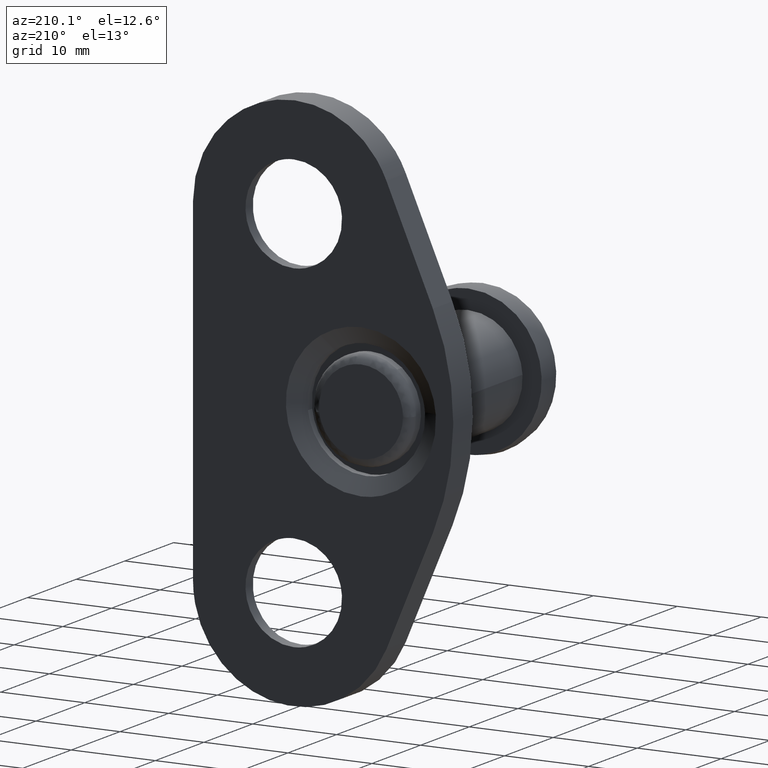
[diagram: clean part render]
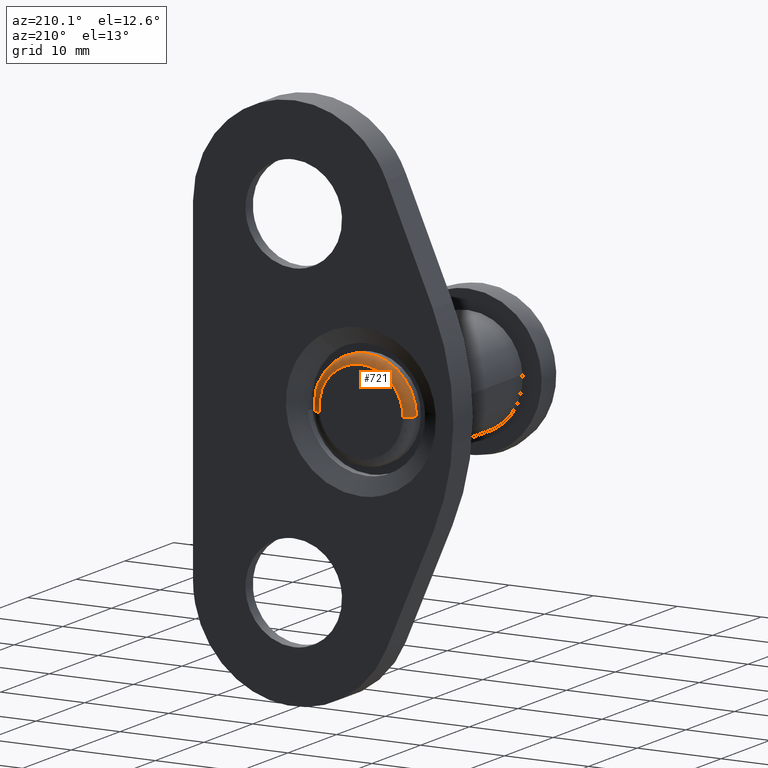
[diagram: same view with one face highlighted and labeled with its STEP entity id]
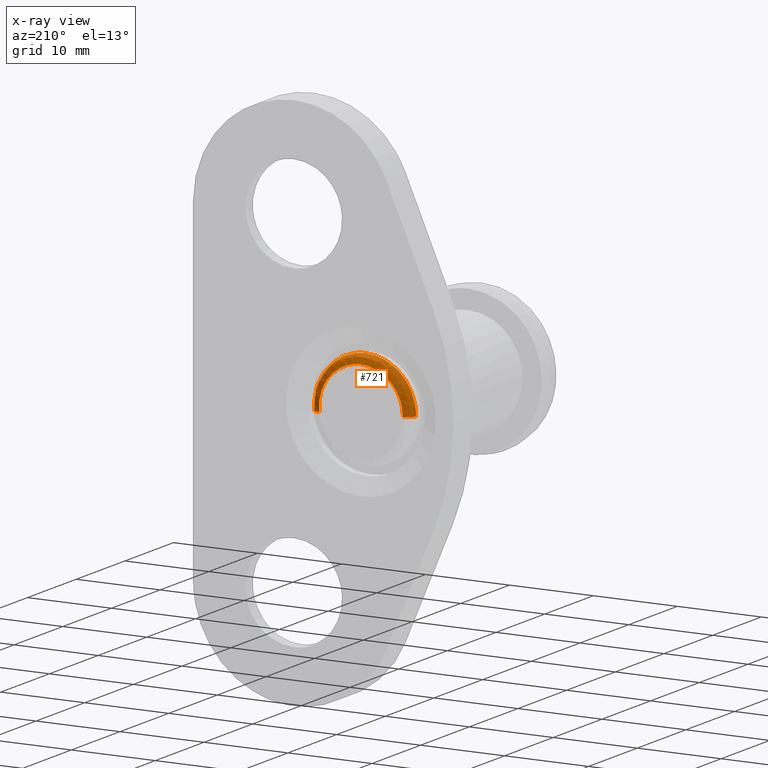
[diagram: x-ray of the same camera — body ghosted, the highlighted face saturated]
A machine part, auxiliary view. The second image highlights one B-rep face of the part: STEP entity #721.
The next image is the same camera in x-ray: the body ghosted, the highlighted face saturated — about 0% of this face is hidden behind the body in this view.
In plain terms, the highlighted face is a freeform B-spline surface patch.
Its self-contained STEP definition (entity closure, byte-faithful):
#438=CARTESIAN_POINT('',(-3.735085064224898,24.000000000106510,4.695651133015704));
#439=VERTEX_POINT('',#438);
#440=CARTESIAN_POINT('',(-5.999999999999998,24.000000000486530,1.688019E-014));
#441=VERTEX_POINT('',#440);
#442=CARTESIAN_POINT('',(-3.735085064224898,24.000000000106517,4.695651133015704));
#443=CARTESIAN_POINT('',(-5.999999999999986,24.000000000251855,2.894058615022534));
#444=CARTESIAN_POINT('',(-5.999999999999998,24.000000000486530,1.688019E-014));
#452=(BOUNDED_CURVE()B_SPLINE_CURVE(2,(#442,#443,#444),.UNSPECIFIED.,.F.,.U.)B_SPLINE_CURVE_WITH_KNOTS((3,3),(0.607863788558453,0.749999999999999),.UNSPECIFIED.)CURVE()GEOMETRIC_REPRESENTATION_ITEM()RATIONAL_B_SPLINE_CURVE((0.856305647179030,0.833477070083743,0.999999999999998))REPRESENTATION_ITEM(''));
#453=EDGE_CURVE('',#439,#441,#452,.T.);
#470=CARTESIAN_POINT('',(5.959869832705856,24.000000000479389,-0.692785376002303));
#471=VERTEX_POINT('',#470);
#485=CARTESIAN_POINT('',(4.695651114970350,24.000000000000231,3.735085086911074));
#486=VERTEX_POINT('',#485);
#487=CARTESIAN_POINT('',(5.959869832705855,24.000000000479393,-0.692785376002303));
#488=CARTESIAN_POINT('',(6.000000000000001,23.999999999999996,-0.347554974627525));
#489=CARTESIAN_POINT('',(6.0,24.0,-2.965939E-016));
#490=CARTESIAN_POINT('',(6.000000000000001,24.000000000000007,2.095291841569265));
#491=CARTESIAN_POINT('',(4.695651114970350,24.000000000000234,3.735085086911075));
#499=(BOUNDED_CURVE()B_SPLINE_CURVE(2,(#487,#488,#489,#490,#491),.UNSPECIFIED.,.F.,.U.)B_SPLINE_CURVE_WITH_KNOTS((3,2,3),(0.229999999997737,0.250000000000000,0.357863789289792),.UNSPECIFIED.)CURVE()GEOMETRIC_REPRESENTATION_ITEM()RATIONAL_B_SPLINE_CURVE((0.956886118186207,0.976568542492273,1.0,0.873629710245987,0.856305646944109))REPRESENTATION_ITEM(''));
#500=EDGE_CURVE('',#471,#486,#499,.T.);
#565=CARTESIAN_POINT('',(0.0,24.0,6.0));
#566=VERTEX_POINT('',#565);
#567=CARTESIAN_POINT('',(0.0,24.0,6.0));
#568=CARTESIAN_POINT('',(-2.095291825307766,23.999999999999996,5.999999999999999));
#569=CARTESIAN_POINT('',(-3.735085064224898,24.000000000106517,4.695651133015704));
#577=(BOUNDED_CURVE()B_SPLINE_CURVE(2,(#567,#568,#569),.UNSPECIFIED.,.F.,.U.)B_SPLINE_CURVE_WITH_KNOTS((3,3),(0.500000000000000,0.607863788558453),.UNSPECIFIED.)CURVE()GEOMETRIC_REPRESENTATION_ITEM()RATIONAL_B_SPLINE_CURVE((1.0,0.873629711102805,0.856305647179030))REPRESENTATION_ITEM(''));
#578=EDGE_CURVE('',#566,#439,#577,.T.);
#610=CARTESIAN_POINT('',(4.695651114970350,24.000000000000234,3.735085086911075));
#611=CARTESIAN_POINT('',(2.894058597156502,24.000000000000007,6.000000000000001));
#612=CARTESIAN_POINT('',(0.0,24.0,6.0));
#620=(BOUNDED_CURVE()B_SPLINE_CURVE(2,(#610,#611,#612),.UNSPECIFIED.,.F.,.U.)B_SPLINE_CURVE_WITH_KNOTS((3,3),(0.357863789289792,0.500000000000000),.UNSPECIFIED.)CURVE()GEOMETRIC_REPRESENTATION_ITEM()RATIONAL_B_SPLINE_CURVE((0.856305646944109,0.833477070940561,1.0))REPRESENTATION_ITEM(''));
#621=EDGE_CURVE('',#486,#566,#620,.T.);
#626=CARTESIAN_POINT('',(4.897671291863597,24.997592334182070,-0.569313056612488));
#627=CARTESIAN_POINT('',(4.930649190479313,24.997592334182070,-0.285611663433111));
#628=CARTESIAN_POINT('',(4.930649190479313,24.997592334182066,-9.057156E-016));
#629=CARTESIAN_POINT('',(4.930649190479315,24.997592334182073,4.930649190479311));
#630=CARTESIAN_POINT('',(1.207621E-015,24.997592334182066,4.930649190479313));
#631=CARTESIAN_POINT('',(-4.930649190479311,24.997592334182073,4.930649190479315));
#632=CARTESIAN_POINT('',(-4.930649190479313,24.997592334182066,1.509526E-015));
#633=CARTESIAN_POINT('',(6.037089267208561,25.077335958139575,-0.701760804051257));
#634=CARTESIAN_POINT('',(6.077739303914530,25.077335958139575,-0.352057744415413));
#635=CARTESIAN_POINT('',(6.077739303914532,25.077335958139571,-1.116426E-015));
#636=CARTESIAN_POINT('',(6.077739303914533,25.077335958139575,6.077739303914528));
#637=CARTESIAN_POINT('',(1.488568E-015,25.077335958139571,6.077739303914532));
#638=CARTESIAN_POINT('',(-6.077739303914528,25.077335958139575,6.077739303914533));
#639=CARTESIAN_POINT('',(-6.077739303914532,25.077335958139571,1.860710E-015));
#640=CARTESIAN_POINT('',(5.957452493004818,23.930275774839707,-0.692503699472595));
#641=CARTESIAN_POINT('',(5.997566304776676,23.930275774839700,-0.347413661504302));
#642=CARTESIAN_POINT('',(5.997566304776677,23.930275774839696,-1.101699E-015));
#643=CARTESIAN_POINT('',(5.997566304776678,23.930275774839707,5.997566304776675));
#644=CARTESIAN_POINT('',(1.468932E-015,23.930275774839696,5.997566304776677));
#645=CARTESIAN_POINT('',(-5.997566304776675,23.930275774839707,5.997566304776678));
#646=CARTESIAN_POINT('',(-5.997566304776677,23.930275774839696,1.836164E-015));
#654=(BOUNDED_SURFACE()B_SPLINE_SURFACE(2,2,((#626,#633,#640),(#627,#634,#641),(#628,#635,#642),(#629,#636,#643),(#630,#637,#644),(#631,#638,#645),(#632,#639,#646)),.UNSPECIFIED.,.F.,.F.,.U.)B_SPLINE_SURFACE_WITH_KNOTS((3,2,2,3),(3,3),(0.0,0.794966699354477,10.732059918036020,20.669153136717568),(0.0,1.822370659225240),.UNSPECIFIED.)GEOMETRIC_REPRESENTATION_ITEM()RATIONAL_B_SPLINE_SURFACE(((0.876475874065725,0.573569883320356,0.871620861004611),(0.894504305791055,0.585367772785560,0.889549428861364),(0.915966720612989,0.599412876740432,0.910892958147065),(0.647686279486648,0.423848909873695,0.644098587640864),(0.915966720612989,0.599412876740432,0.910892958147065),(0.647686279486648,0.423848909873695,0.644098587640864),(0.915966720612989,0.599412876740432,0.910892958147065)))REPRESENTATION_ITEM('')SURFACE());
#655=ORIENTED_EDGE('',*,*,#621,.F.);
#656=ORIENTED_EDGE('',*,*,#500,.F.);
#657=CARTESIAN_POINT('',(4.966558198813027,25.0,-0.577321147568961));
#658=VERTEX_POINT('',#657);
#659=CARTESIAN_POINT('',(4.966558198813027,24.999999999999996,-0.577321147568961));
#660=CARTESIAN_POINT('',(5.959869831758123,24.999999990074553,-0.692785375851739));
#661=CARTESIAN_POINT('',(5.959869832705856,24.000000000479393,-0.692785376002303));
#669=(BOUNDED_CURVE()B_SPLINE_CURVE(2,(#659,#660,#661),.UNSPECIFIED.,.F.,.U.)B_SPLINE_CURVE_WITH_KNOTS((3,3),(-1.736413110799697,-0.276558719002380),.UNSPECIFIED.)CURVE()GEOMETRIC_REPRESENTATION_ITEM()RATIONAL_B_SPLINE_CURVE((0.850203272773356,0.599621901115899,0.845789311564569))REPRESENTATION_ITEM(''));
#670=EDGE_CURVE('',#658,#471,#669,.T.);
#671=ORIENTED_EDGE('',*,*,#670,.F.);
#672=CARTESIAN_POINT('',(0.0,25.0,5.0));
#673=VERTEX_POINT('',#672);
#674=CARTESIAN_POINT('',(4.966558198813028,24.999999999999996,-0.577321147568961));
#675=CARTESIAN_POINT('',(4.999999999999999,25.000000000000004,-0.289629145853605));
#676=CARTESIAN_POINT('',(5.0,25.0,-2.965939E-016));
#677=CARTESIAN_POINT('',(5.000000000000001,25.0,5.000000000000001));
#678=CARTESIAN_POINT('',(0.0,25.0,5.0));
#686=(BOUNDED_CURVE()B_SPLINE_CURVE(2,(#674,#675,#676,#677,#678),.UNSPECIFIED.,.F.,.U.)B_SPLINE_CURVE_WITH_KNOTS((3,2,3),(0.229999999975439,0.250000000000000,0.500000000000000),.UNSPECIFIED.)CURVE()GEOMETRIC_REPRESENTATION_ITEM()RATIONAL_B_SPLINE_CURVE((0.956886118142317,0.976568542466148,1.0,0.707106781186548,1.0))REPRESENTATION_ITEM(''));
#687=EDGE_CURVE('',#658,#673,#686,.T.);
#688=ORIENTED_EDGE('',*,*,#687,.T.);
#689=CARTESIAN_POINT('',(-5.000000000820558,25.0,-3.366936E-017));
#690=VERTEX_POINT('',#689);
#691=CARTESIAN_POINT('',(0.0,25.0,5.0));
#692=CARTESIAN_POINT('',(-4.999999999999974,24.999999999999993,5.0));
#693=CARTESIAN_POINT('',(-5.000000000820558,25.0,-3.366936E-017));
#701=(BOUNDED_CURVE()B_SPLINE_CURVE(2,(#691,#692,#693),.UNSPECIFIED.,.F.,.U.)B_SPLINE_CURVE_WITH_KNOTS((3,3),(0.500000000000000,0.749999999999999),.UNSPECIFIED.)CURVE()GEOMETRIC_REPRESENTATION_ITEM()RATIONAL_B_SPLINE_CURVE((1.0,0.707106781186549,0.999999999999998))REPRESENTATION_ITEM(''));
#702=EDGE_CURVE('',#673,#690,#701,.T.);
#703=ORIENTED_EDGE('',*,*,#702,.T.);
#704=CARTESIAN_POINT('',(-5.000000000820558,25.000000000000004,-3.366936E-017));
#705=CARTESIAN_POINT('',(-5.999999999026927,24.999999998358888,8.508116E-017));
#706=CARTESIAN_POINT('',(-5.999999999999998,24.000000000486533,1.688019E-014));
#714=(BOUNDED_CURVE()B_SPLINE_CURVE(2,(#704,#705,#706),.UNSPECIFIED.,.F.,.U.)B_SPLINE_CURVE_WITH_KNOTS((3,3),(-1.736413119373675,-0.276558719017095),.UNSPECIFIED.)CURVE()GEOMETRIC_REPRESENTATION_ITEM()RATIONAL_B_SPLINE_CURVE((0.888510408453191,0.626638727716569,0.883897566785563))REPRESENTATION_ITEM(''));
#715=EDGE_CURVE('',#690,#441,#714,.T.);
#716=ORIENTED_EDGE('',*,*,#715,.T.);
#717=ORIENTED_EDGE('',*,*,#453,.F.);
#718=ORIENTED_EDGE('',*,*,#578,.F.);
#719=EDGE_LOOP('',(#655,#656,#671,#688,#703,#716,#717,#718));
#720=FACE_OUTER_BOUND('',#719,.T.);
#721=ADVANCED_FACE('',(#720),#654,.T.);